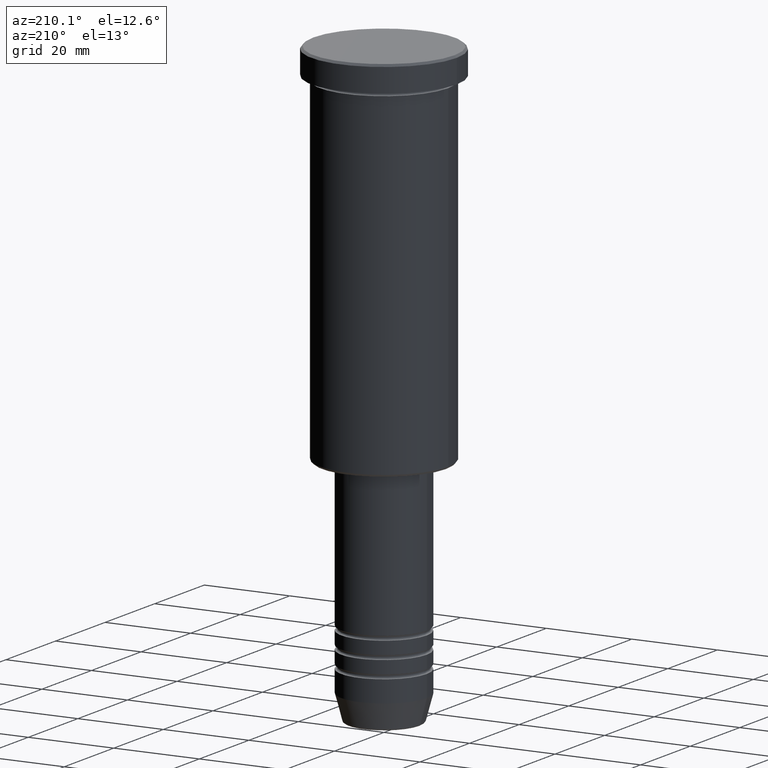
[diagram: clean part render]
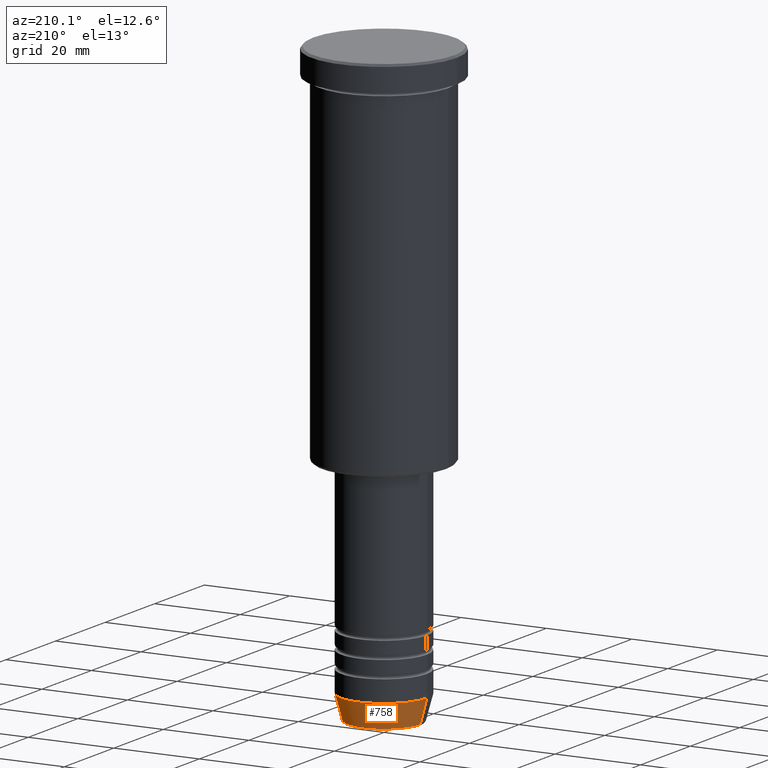
[diagram: same view with one face highlighted and labeled with its STEP entity id]
A machine part, auxiliary view. The second image highlights one B-rep face of the part: STEP entity #758.
In plain terms, the highlighted conical surface has half-angle 15 deg.
Its self-contained STEP definition (entity closure, byte-faithful):
#11 = CIRCLE ( 'NONE', #156, 8.491604264568316296 ) ;
#16 = DIRECTION ( 'NONE',  ( 0.2588190451025214056, 0.000000000000000000, 0.9659258262890680902 ) ) ;
#19 = EDGE_CURVE ( 'NONE', #1130, #893, #11, .T. ) ;
#46 = LINE ( 'NONE', #294, #521 ) ;
#103 = ORIENTED_EDGE ( 'NONE', *, *, #854, .T. ) ;
#129 = ORIENTED_EDGE ( 'NONE', *, *, #210, .F. ) ;
#147 = CARTESIAN_POINT ( 'NONE',  ( 0.000000000000000000, 0.000000000000000000, -134.0000000000000000 ) ) ;
#156 = AXIS2_PLACEMENT_3D ( 'NONE', #727, #812, #525 ) ;
#210 = EDGE_CURVE ( 'NONE', #657, #843, #624, .T. ) ;
#294 = CARTESIAN_POINT ( 'NONE',  ( 10.00000000000000178, 0.000000000000000000, -134.0000000000000000 ) ) ;
#324 = DIRECTION ( 'NONE',  ( 1.000000000000000000, 0.000000000000000000, 0.000000000000000000 ) ) ;
#330 = CARTESIAN_POINT ( 'NONE',  ( -8.491604264568316296, 1.132284198685156781E-15, -139.6294095225512706 ) ) ;
#352 = EDGE_LOOP ( 'NONE', ( #855, #103, #129, #1048 ) ) ;
#387 = CARTESIAN_POINT ( 'NONE',  ( 8.491604264568316296, 0.000000000000000000, -139.6294095225512706 ) ) ;
#420 = CONICAL_SURFACE ( 'NONE', #445, 10.00000000000000178, 0.2617993877991501295 ) ;
#445 = AXIS2_PLACEMENT_3D ( 'NONE', #147, #654, #556 ) ;
#504 = EDGE_CURVE ( 'NONE', #1130, #657, #46, .T. ) ;
#521 = VECTOR ( 'NONE', #16, 1000.000000000000000 ) ;
#525 = DIRECTION ( 'NONE',  ( 1.000000000000000000, 0.000000000000000000, 0.000000000000000000 ) ) ;
#546 = LINE ( 'NONE', #808, #803 ) ;
#556 = DIRECTION ( 'NONE',  ( 1.000000000000000000, 0.000000000000000000, 0.000000000000000000 ) ) ;
#613 = DIRECTION ( 'NONE',  ( -0.000000000000000000, -0.000000000000000000, 1.000000000000000000 ) ) ;
#615 = CARTESIAN_POINT ( 'NONE',  ( -10.00000000000000178, 1.224646799147353454E-15, -134.0000000000000000 ) ) ;
#624 = CIRCLE ( 'NONE', #879, 10.00000000000000178 ) ;
#654 = DIRECTION ( 'NONE',  ( -0.000000000000000000, -0.000000000000000000, 1.000000000000000000 ) ) ;
#657 = VERTEX_POINT ( 'NONE', #866 ) ;
#727 = CARTESIAN_POINT ( 'NONE',  ( 0.000000000000000000, 0.000000000000000000, -139.6294095225512706 ) ) ;
#758 = ADVANCED_FACE ( 'NONE', ( #1034 ), #420, .T. ) ;
#803 = VECTOR ( 'NONE', #1141, 1000.000000000000000 ) ;
#808 = CARTESIAN_POINT ( 'NONE',  ( -10.00000000000000178, 1.224646799147353454E-15, -134.0000000000000000 ) ) ;
#812 = DIRECTION ( 'NONE',  ( -0.000000000000000000, -0.000000000000000000, 1.000000000000000000 ) ) ;
#843 = VERTEX_POINT ( 'NONE', #615 ) ;
#854 = EDGE_CURVE ( 'NONE', #893, #843, #546, .T. ) ;
#855 = ORIENTED_EDGE ( 'NONE', *, *, #19, .T. ) ;
#863 = CARTESIAN_POINT ( 'NONE',  ( 0.000000000000000000, 0.000000000000000000, -134.0000000000000000 ) ) ;
#866 = CARTESIAN_POINT ( 'NONE',  ( 10.00000000000000178, 0.000000000000000000, -134.0000000000000000 ) ) ;
#879 = AXIS2_PLACEMENT_3D ( 'NONE', #863, #613, #324 ) ;
#893 = VERTEX_POINT ( 'NONE', #330 ) ;
#1034 = FACE_OUTER_BOUND ( 'NONE', #352, .T. ) ;
#1048 = ORIENTED_EDGE ( 'NONE', *, *, #504, .F. ) ;
#1130 = VERTEX_POINT ( 'NONE', #387 ) ;
#1141 = DIRECTION ( 'NONE',  ( -0.2588190451025214056, 3.169619151431772953E-17, 0.9659258262890680902 ) ) ;